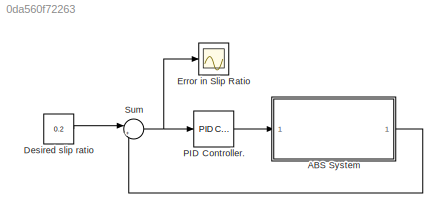
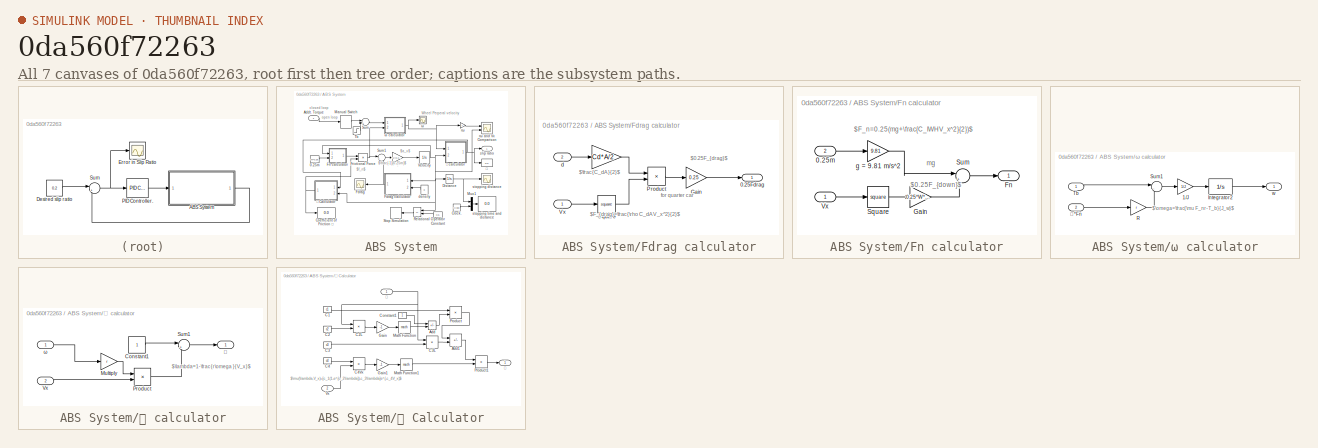
[diagram: thumbnail index - all 7 canvases of the model, root first then tree order]
MODEL slx_0da560f72263
KIND model
CONFIG AbsTol = auto
CONFIG EnableMultiTasking = off
CONFIG FixedStep = auto
CONFIG MaxStep = auto
CONFIG MinStep = auto
CONFIG RelTol = 1e-3
CONFIG SampleTimeConstraint = Unconstrained
CONFIG SolverName = VariableStepAuto
CONFIG StartTime = 0.0
CONFIG StopTime = 50
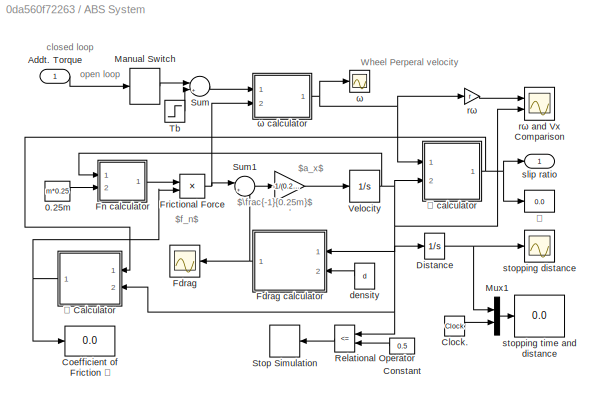
BLOCK [SubSystem] ABS System
  Ports = [1, 1]
  RequestExecContextInheritance = off
BLOCK [Gain] ABS System/.
  Gain = -1/(0.25*m)
BLOCK [Constant] ABS System/0.25m
  Value = m*0.25
BLOCK [Inport] ABS System/Addt. Torque
BLOCK [Clock] ABS System/Clock.
BLOCK [Display] ABS System/Coefficient of Friction 𝜇
  Decimation = 1
  Ports = [1]
BLOCK [Constant] ABS System/Constant
  Value = 0.5
BLOCK [Integrator] ABS System/Distance
  Ports = [1, 1]
BLOCK [Scope] ABS System/Fdrag
  Floating = off
  NumInputPorts = 1
  Ports = [1]
  ScopeSpecificationString = Simulink.scopes.TimeScopeBlockCfg('CurrentConfiguration', extmgr.ConfigurationSet(extmgr.Configuration('Core','General UI',true),extmgr.Configuration('Core','Source UI',true),extmgr.Configuration('Sources','WiredSimulink',true,'DataLoggingVariableName','ScopeData1'),extmgr.Configuration('Visuals','Time Domain',true,'SerializedDisplays',{struct('MinYLimReal','-89.72298','MaxYLimReal','809.83886','Y...<+1414ch>
BLOCK [SubSystem] ABS System/Fdrag calculator
  Ports = [2, 1]
  RequestExecContextInheritance = off
BLOCK [Gain] ABS System/Fdrag calculator/.
  Gain = Cd*A/2
BLOCK [Outport] ABS System/Fdrag calculator/0.25Fdrag
BLOCK [Gain] ABS System/Fdrag calculator/Gain
  Gain = 0.25
BLOCK [Product] ABS System/Fdrag calculator/Product
  Ports = [2, 1]
BLOCK [Math] ABS System/Fdrag calculator/Square
  Operator = square
  Ports = [1, 1]
BLOCK [Inport] ABS System/Fdrag calculator/Vx
BLOCK [Inport] ABS System/Fdrag calculator/d
  Port = 2
BLOCK [SubSystem] ABS System/Fn calculator
  Ports = [2, 1]
  RequestExecContextInheritance = off
BLOCK [Inport] ABS System/Fn calculator/0.25m
  Port = 2
BLOCK [Outport] ABS System/Fn calculator/Fn
BLOCK [Gain] ABS System/Fn calculator/Gain
  Gain = 0.25*W*H*F*d/2
BLOCK [Math] ABS System/Fn calculator/Square
  Operator = square
  Ports = [1, 1]
BLOCK [Sum] ABS System/Fn calculator/Sum
  Inputs = |++
  Ports = [2, 1]
BLOCK [Inport] ABS System/Fn calculator/Vx
BLOCK [Gain] ABS System/Fn calculator/g = 9.81 m//s^2
  Gain = 9.81
BLOCK [Product] ABS System/Frictional Force
  Ports = [2, 1]
BLOCK [ManualSwitch] ABS System/Manual Switch
BLOCK [Mux] ABS System/Mux1
  DisplayOption = bar
  Inputs = 2
  Ports = [2, 1]
BLOCK [RelationalOperator] ABS System/Relational Operator
  InputSameDT = off
  Operator = <=
  OutDataTypeStr = boolean
  Ports = [2, 1]
  RndMeth = Simplest
BLOCK [Stop] ABS System/Stop Simulation
BLOCK [Sum] ABS System/Sum
  Inputs = |++
  Ports = [2, 1]
BLOCK [Sum] ABS System/Sum1
  Inputs = |++
  Ports = [2, 1]
BLOCK [Step] ABS System/Tb
  After = Tb
  SampleTime = 0
  Time = 0
BLOCK [Integrator] ABS System/Velocity
  InitialCondition = Vx
  LimitOutput = on
  LowerSaturationLimit = 0
  Ports = [1, 1]
BLOCK [Constant] ABS System/density
  Value = d
BLOCK [Gain] ABS System/rω
  Gain = r
BLOCK [Scope] ABS System/rω and Vx Comparison 
  Floating = off
  NumInputPorts = 2
  Ports = [2]
  ScopeSpecificationString = Simulink.scopes.TimeScopeBlockCfg('CurrentConfiguration', extmgr.ConfigurationSet(extmgr.Configuration('Core','General UI',true),extmgr.Configuration('Core','Source UI',true),extmgr.Configuration('Sources','WiredSimulink',true,'DataLoggingVariableName','ScopeData1'),extmgr.Configuration('Visuals','Time Domain',true,'SerializedDisplays',{struct('MinYLimReal','-3.00759','MaxYLimReal','31.20084','YLa...<+1571ch>
BLOCK [Outport] ABS System/slip ratio
BLOCK [Scope] ABS System/stopping distance
  Floating = off
  NumInputPorts = 1
  Ports = [1]
  ScopeSpecificationString = Simulink.scopes.TimeScopeBlockCfg('CurrentConfiguration', extmgr.ConfigurationSet(extmgr.Configuration('Core','General UI',true),extmgr.Configuration('Core','Source UI',true),extmgr.Configuration('Sources','WiredSimulink',true),extmgr.Configuration('Visuals','Time Domain',true,'SerializedDisplays',{struct('MinYLimReal','-4.39922','MaxYLimReal','39.59299','YLabelReal','Stopping Distance','MinYLimMa...<+1590ch>
BLOCK [Display] ABS System/stopping time and distance
  Decimation = 1
  Ports = [1]
BLOCK [Scope] ABS System/ω
  Floating = off
  NumInputPorts = 1
  Ports = [1]
  ScopeSpecificationString = Simulink.scopes.TimeScopeBlockCfg('CurrentConfiguration', extmgr.ConfigurationSet(extmgr.Configuration('Core','General UI',true),extmgr.Configuration('Core','Source UI',true),extmgr.Configuration('Sources','WiredSimulink',true,'DataLoggingVariableName','ScopeData2'),extmgr.Configuration('Visuals','Time Domain',true,'SerializedDisplays',{struct('MinYLimReal','-10.5225','MaxYLimReal','94.7025','YLab...<+1473ch>
BLOCK [SubSystem] ABS System/ω calculator
  Ports = [2, 1]
  RequestExecContextInheritance = off
BLOCK [Gain] ABS System/ω calculator/1//J
  Gain = 1/J
BLOCK [Integrator] ABS System/ω calculator/Integrator2
  InitialCondition = w
  LimitOutput = on
  LowerSaturationLimit = 0
  Ports = [1, 1]
BLOCK [Gain] ABS System/ω calculator/R
  Gain = r
BLOCK [Sum] ABS System/ω calculator/Sum1
  Inputs = |-+
  Ports = [2, 1]
BLOCK [Inport] ABS System/ω calculator/Tb
BLOCK [Outport] ABS System/ω calculator/w
BLOCK [Inport] ABS System/ω calculator/𝜇*Fn
  Port = 2
BLOCK [Display] ABS System/𝜆
  Decimation = 1
  Ports = [1]
BLOCK [SubSystem] ABS System/𝜆 calculator
  Ports = [2, 1]
  RequestExecContextInheritance = off
BLOCK [Constant] ABS System/𝜆 calculator/Constant1
BLOCK [Gain] ABS System/𝜆 calculator/Multiply
  Gain = r
BLOCK [Product] ABS System/𝜆 calculator/Product
  Inputs = */
  Ports = [2, 1]
BLOCK [Sum] ABS System/𝜆 calculator/Sum1
  Inputs = |+-
  Ports = [2, 1]
BLOCK [Inport] ABS System/𝜆 calculator/Vx
  Port = 2
BLOCK [Inport] ABS System/𝜆 calculator/ω
BLOCK [Outport] ABS System/𝜆 calculator/𝜆
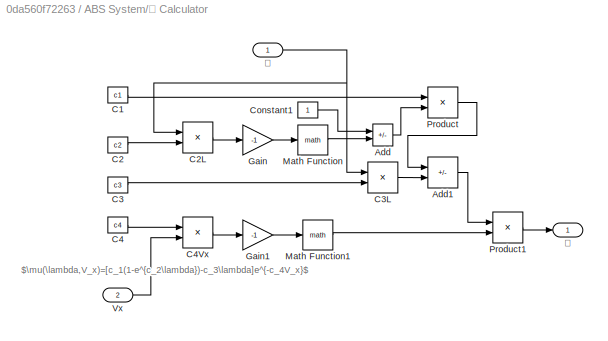
BLOCK [SubSystem] ABS System/𝜇 Calculator
  Ports = [2, 1]
  RequestExecContextInheritance = off
BLOCK [Sum] ABS System/𝜇 Calculator/Add
  IconShape = rectangular
  Inputs = +-
  Ports = [2, 1]
BLOCK [Sum] ABS System/𝜇 Calculator/Add1
  IconShape = rectangular
  Inputs = +-
  Ports = [2, 1]
BLOCK [Constant] ABS System/𝜇 Calculator/C1
  Value = c1
BLOCK [Constant] ABS System/𝜇 Calculator/C2
  Value = c2
BLOCK [Product] ABS System/𝜇 Calculator/C2L
  Ports = [2, 1]
BLOCK [Constant] ABS System/𝜇 Calculator/C3
  Value = c3
BLOCK [Product] ABS System/𝜇 Calculator/C3L
  Ports = [2, 1]
BLOCK [Constant] ABS System/𝜇 Calculator/C4
  Value = c4
BLOCK [Product] ABS System/𝜇 Calculator/C4Vx
  Ports = [2, 1]
BLOCK [Constant] ABS System/𝜇 Calculator/Constant1
BLOCK [Gain] ABS System/𝜇 Calculator/Gain
  Gain = -1
BLOCK [Gain] ABS System/𝜇 Calculator/Gain1
  Gain = -1
BLOCK [Math] ABS System/𝜇 Calculator/Math Function
  Ports = [1, 1]
BLOCK [Math] ABS System/𝜇 Calculator/Math Function1
  Ports = [1, 1]
BLOCK [Product] ABS System/𝜇 Calculator/Product
  Ports = [2, 1]
BLOCK [Product] ABS System/𝜇 Calculator/Product1
  Ports = [2, 1]
BLOCK [Inport] ABS System/𝜇 Calculator/Vx
  Port = 2
BLOCK [Inport] ABS System/𝜇 Calculator/𝜆
BLOCK [Outport] ABS System/𝜇 Calculator/𝜇
BLOCK [Constant] Desired slip ratio
  Value = 0.2
BLOCK [Scope] Error in Slip Ratio
  Floating = off
  NumInputPorts = 1
  Ports = [1]
  ScopeSpecificationString = Simulink.scopes.TimeScopeBlockCfg('CurrentConfiguration', extmgr.ConfigurationSet(extmgr.Configuration('Core','General UI',true),extmgr.Configuration('Core','Source UI',true),extmgr.Configuration('Sources','WiredSimulink',true,'DataLoggingVariableName','ScopeData1'),extmgr.Configuration('Visuals','Time Domain',true,'SerializedDisplays',{struct('MinYLimReal','-0.06357','MaxYLimReal','0.22926','YLab...<+1435ch>
BLOCK [Reference] PID Controller.  REF=pid_lib/PID Controller
  Ports = [1, 1]
  SourceBlock = pid_lib/PID Controller
  SourceProductBaseCode = SL
  SourceType = PID 1dof
BLOCK [Sum] Sum
  Inputs = |+-
  Ports = [2, 1]
ANNOTATION ABS System: closed loop
ANNOTATION ABS System: Wheel Perperal velocity
ANNOTATION ABS System: $\frac{-1}{0.25m}$
ANNOTATION ABS System: $a_x$
ANNOTATION ABS System: $f_n$
ANNOTATION ABS System: open loop
ANNOTATION ABS System/Fdrag calculator: $0.25F_{drag}$
ANNOTATION ABS System/Fdrag calculator: $F_{drag}=\frac{\rho C_dAV_x^2}{2}$
ANNOTATION ABS System/Fdrag calculator: $\frac{C_dA}{2}$
ANNOTATION ABS System/Fdrag calculator: for quarter car
ANNOTATION ABS System/Fn calculator: $0.25F_{down}$
ANNOTATION ABS System/Fn calculator: $F_n=0.25(mg+\frac{C_lWHV_x^2}{2})$
ANNOTATION ABS System/Fn calculator: mg
ANNOTATION ABS System/ω calculator: $\omega=\frac{\mu F_nr-T_b}{J_w}$
ANNOTATION ABS System/𝜆 calculator: $\lambda=1-\frac{r\omega }{V_x}$
ANNOTATION ABS System/𝜇 Calculator: $\mu(\lambda,V_x)=[c_1(1-e^{c_2\lambda})-c_3\lambda]e^{-c_4V_x}$
LINE ABS System/.:1 -> ABS System/Velocity:1
LINE ABS System/0.25m:1 -> ABS System/Fn calculator:2
LINE ABS System/Addt. Torque:1 -> ABS System/Manual Switch:1
LINE ABS System/Clock.:1 -> ABS System/Mux1:2
LINE ABS System/Constant:1 -> ABS System/Relational Operator:2
NET ABS System/Distance:1 -> ABS System/Mux1:1, ABS System/stopping distance:1
LINE ABS System/Fdrag calculator/.:1 -> ABS System/Fdrag calculator/Product:1
LINE ABS System/Fdrag calculator/Gain:1 -> ABS System/Fdrag calculator/0.25Fdrag:1
LINE ABS System/Fdrag calculator/Product:1 -> ABS System/Fdrag calculator/Gain:1
LINE ABS System/Fdrag calculator/Square:1 -> ABS System/Fdrag calculator/Product:2
LINE ABS System/Fdrag calculator/Vx:1 -> ABS System/Fdrag calculator/Square:1
LINE ABS System/Fdrag calculator/d:1 -> ABS System/Fdrag calculator/.:1
NET ABS System/Fdrag calculator:1 -> ABS System/Fdrag:1, ABS System/Sum1:2
LINE ABS System/Fn calculator/0.25m:1 -> ABS System/Fn calculator/g = 9.81 m//s^2:1
LINE ABS System/Fn calculator/Gain:1 -> ABS System/Fn calculator/Sum:2
LINE ABS System/Fn calculator/Square:1 -> ABS System/Fn calculator/Gain:1
LINE ABS System/Fn calculator/Sum:1 -> ABS System/Fn calculator/Fn:1
LINE ABS System/Fn calculator/Vx:1 -> ABS System/Fn calculator/Square:1
LINE ABS System/Fn calculator/g = 9.81 m//s^2:1 -> ABS System/Fn calculator/Sum:1
LINE ABS System/Fn calculator:1 -> ABS System/Frictional Force:1
NET ABS System/Frictional Force:1 -> ABS System/Sum1:1, ABS System/ω calculator:2
LINE ABS System/Manual Switch:1 -> ABS System/Sum:1
LINE ABS System/Mux1:1 -> ABS System/stopping time and distance:1
LINE ABS System/Relational Operator:1 -> ABS System/Stop Simulation:1
LINE ABS System/Sum1:1 -> ABS System/.:1
LINE ABS System/Sum:1 -> ABS System/ω calculator:1
LINE ABS System/Tb:1 -> ABS System/Sum:2
NET ABS System/Velocity:1 -> ABS System/Distance:1, ABS System/Fdrag calculator:1, ABS System/Fn calculator:1, ABS System/Relational Operator:1, ABS System/rω and Vx Comparison :2, ABS System/𝜆 calculator:2, ABS System/𝜇 Calculator:2
LINE ABS System/density:1 -> ABS System/Fdrag calculator:2
LINE ABS System/rω:1 -> ABS System/rω and Vx Comparison :1
LINE ABS System/ω calculator/1//J:1 -> ABS System/ω calculator/Integrator2:1
LINE ABS System/ω calculator/Integrator2:1 -> ABS System/ω calculator/w:1
LINE ABS System/ω calculator/R:1 -> ABS System/ω calculator/Sum1:2
LINE ABS System/ω calculator/Sum1:1 -> ABS System/ω calculator/1//J:1
LINE ABS System/ω calculator/Tb:1 -> ABS System/ω calculator/Sum1:1
LINE ABS System/ω calculator/𝜇*Fn:1 -> ABS System/ω calculator/R:1
NET ABS System/ω calculator:1 -> ABS System/rω:1, ABS System/ω:1, ABS System/𝜆 calculator:1
LINE ABS System/𝜆 calculator/Constant1:1 -> ABS System/𝜆 calculator/Sum1:1
LINE ABS System/𝜆 calculator/Multiply:1 -> ABS System/𝜆 calculator/Product:1
LINE ABS System/𝜆 calculator/Product:1 -> ABS System/𝜆 calculator/Sum1:2
LINE ABS System/𝜆 calculator/Sum1:1 -> ABS System/𝜆 calculator/𝜆:1
LINE ABS System/𝜆 calculator/Vx:1 -> ABS System/𝜆 calculator/Product:2
LINE ABS System/𝜆 calculator/ω:1 -> ABS System/𝜆 calculator/Multiply:1
NET ABS System/𝜆 calculator:1 -> ABS System/slip ratio:1, ABS System/𝜆:1, ABS System/𝜇 Calculator:1
LINE ABS System/𝜇 Calculator/Add1:1 -> ABS System/𝜇 Calculator/Product1:1
LINE ABS System/𝜇 Calculator/Add:1 -> ABS System/𝜇 Calculator/Product:2
LINE ABS System/𝜇 Calculator/C1:1 -> ABS System/𝜇 Calculator/Product:1
LINE ABS System/𝜇 Calculator/C2:1 -> ABS System/𝜇 Calculator/C2L:2
LINE ABS System/𝜇 Calculator/C2L:1 -> ABS System/𝜇 Calculator/Gain:1
LINE ABS System/𝜇 Calculator/C3:1 -> ABS System/𝜇 Calculator/C3L:2
LINE ABS System/𝜇 Calculator/C3L:1 -> ABS System/𝜇 Calculator/Add1:2
LINE ABS System/𝜇 Calculator/C4:1 -> ABS System/𝜇 Calculator/C4Vx:1
LINE ABS System/𝜇 Calculator/C4Vx:1 -> ABS System/𝜇 Calculator/Gain1:1
LINE ABS System/𝜇 Calculator/Constant1:1 -> ABS System/𝜇 Calculator/Add:1
LINE ABS System/𝜇 Calculator/Gain1:1 -> ABS System/𝜇 Calculator/Math Function1:1
LINE ABS System/𝜇 Calculator/Gain:1 -> ABS System/𝜇 Calculator/Math Function:1
LINE ABS System/𝜇 Calculator/Math Function1:1 -> ABS System/𝜇 Calculator/Product1:2
LINE ABS System/𝜇 Calculator/Math Function:1 -> ABS System/𝜇 Calculator/Add:2
LINE ABS System/𝜇 Calculator/Product1:1 -> ABS System/𝜇 Calculator/𝜇:1
LINE ABS System/𝜇 Calculator/Product:1 -> ABS System/𝜇 Calculator/Add1:1
LINE ABS System/𝜇 Calculator/Vx:1 -> ABS System/𝜇 Calculator/C4Vx:2
NET ABS System/𝜇 Calculator/𝜆:1 -> ABS System/𝜇 Calculator/C2L:1, ABS System/𝜇 Calculator/C3L:1
NET ABS System/𝜇 Calculator:1 -> ABS System/Coefficient of Friction 𝜇:1, ABS System/Frictional Force:2
LINE ABS System:1 -> Sum:2
LINE Desired slip ratio:1 -> Sum:1
LINE PID Controller.:1 -> ABS System:1
NET Sum:1 -> Error in Slip Ratio:1, PID Controller.:1
note: NET lines group one-source signal fan-out (src -> all destinations, sorted); 1:1 wires keep LINE
